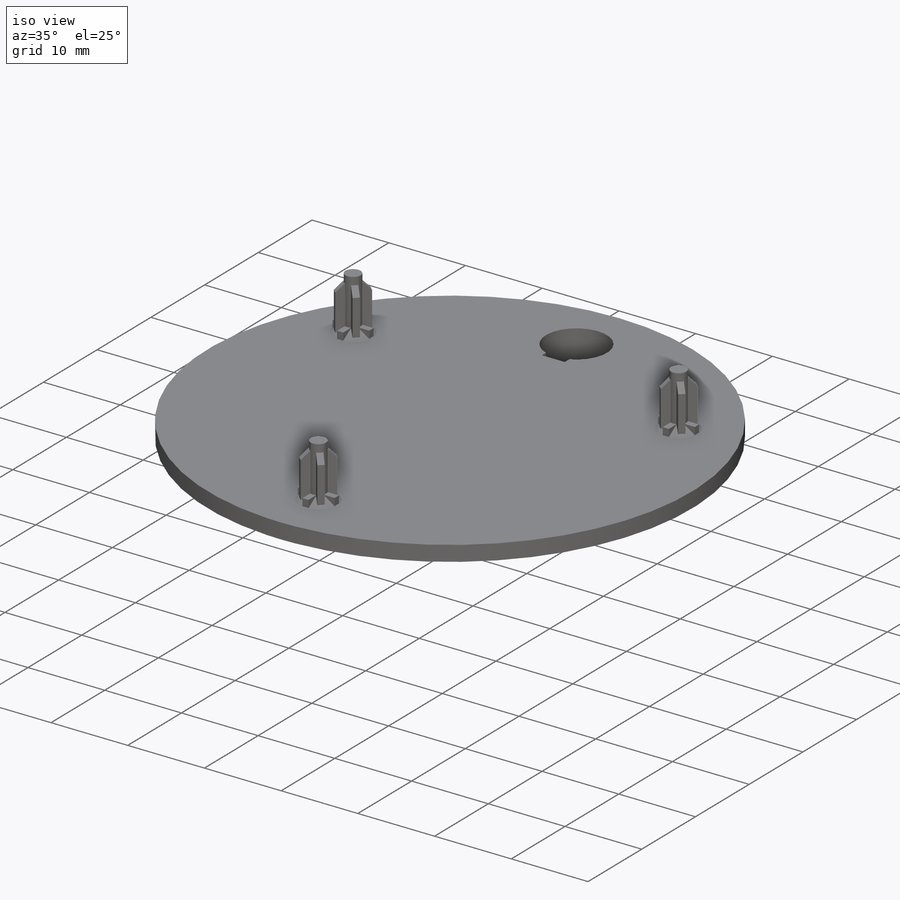
[diagram: iso view]
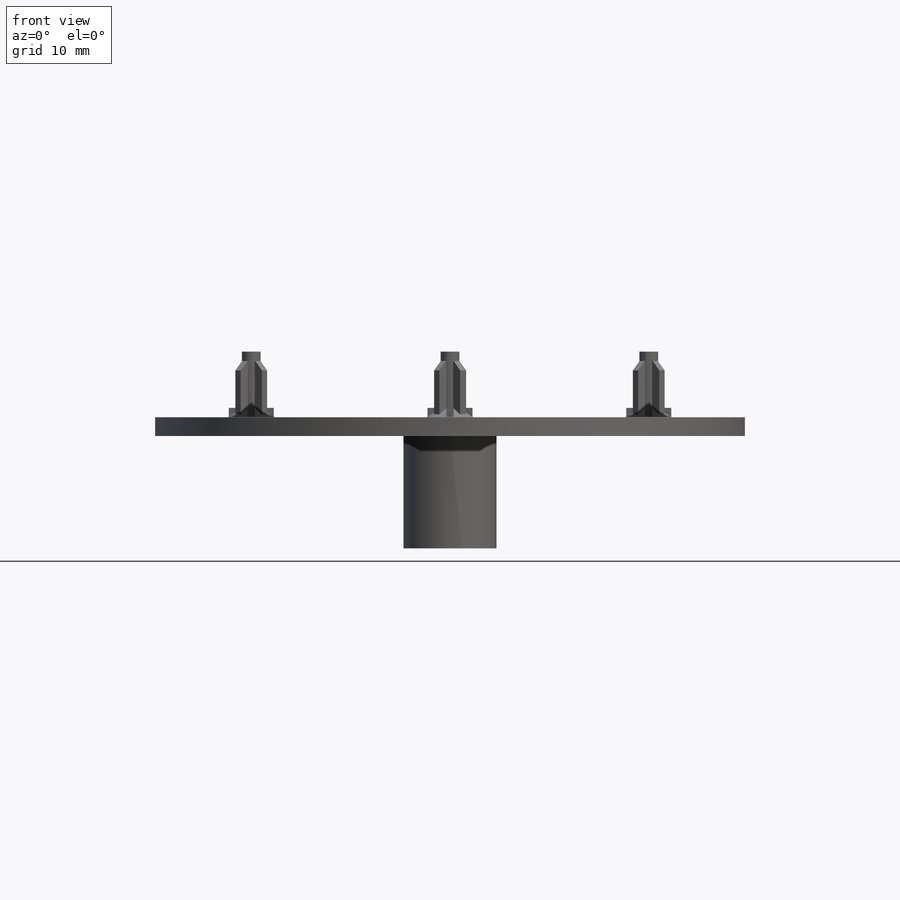
[diagram: front view]
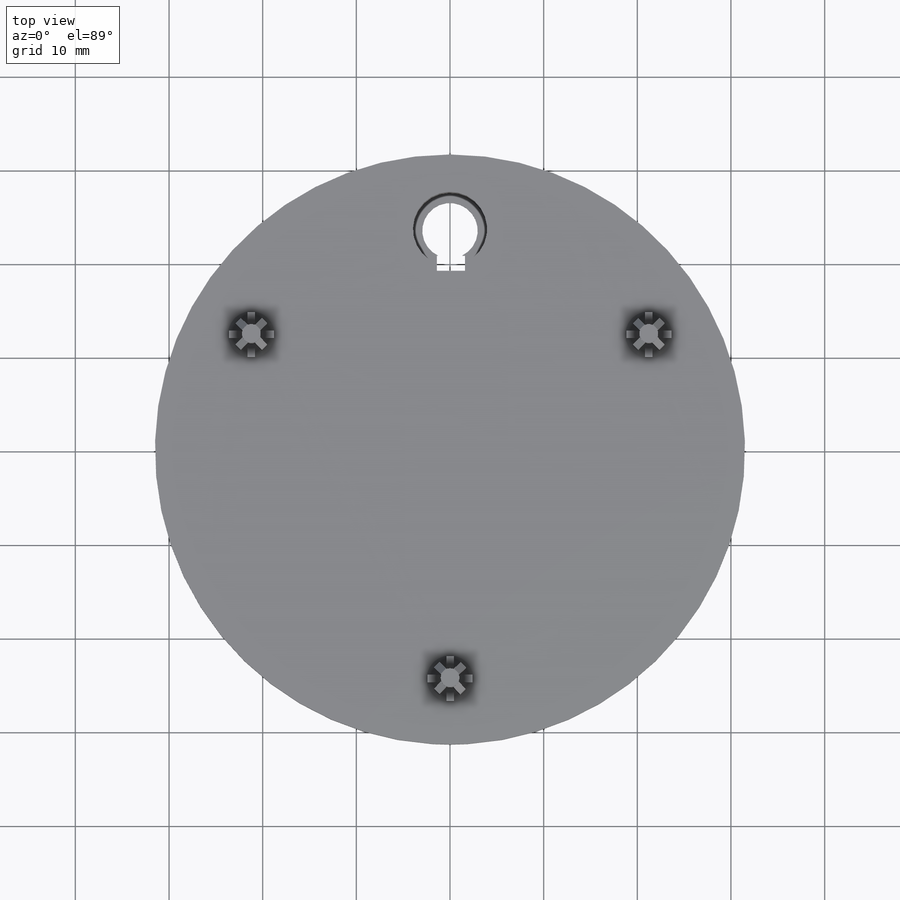
[diagram: top view]
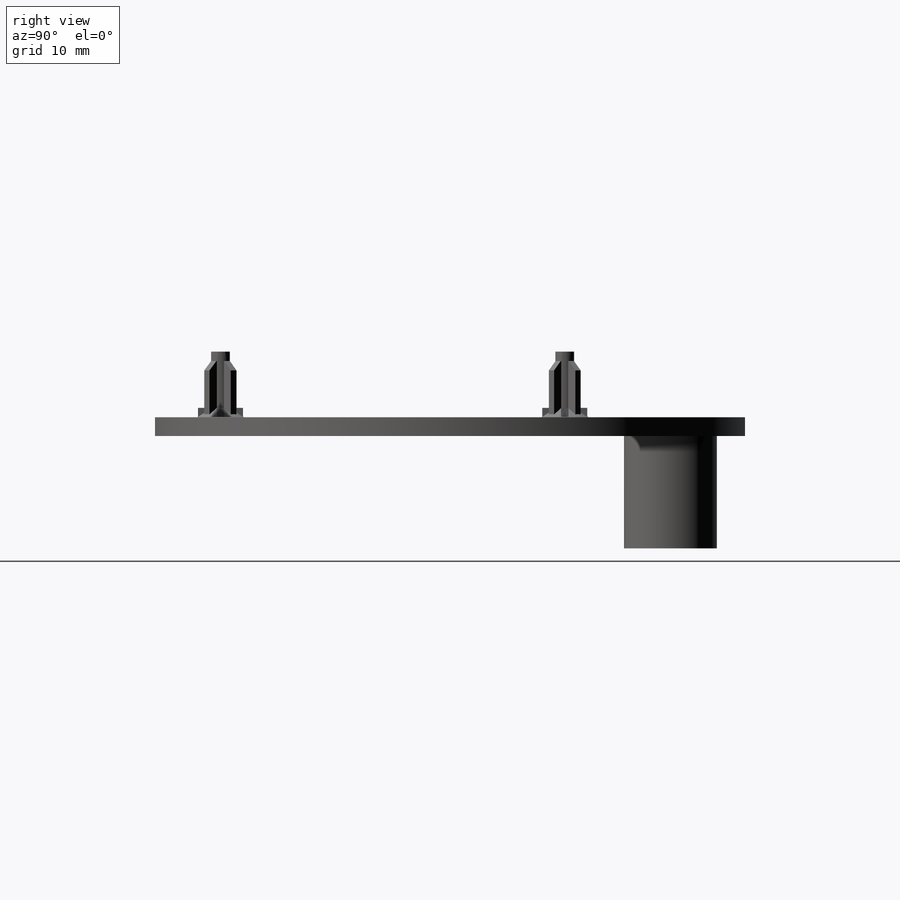
[diagram: right view]
SOLIDWORKS PART (.sldprt)
format: sldprt  version: not decoded by parser v0  size: 790,528 bytes
history: native  units: mm
features: sketch x11, extrude x8, plane x3, cut_extrude x3, material x1, chamfer x1 (+9 scaffold rows collapsed)
feature tree (36):
  scaffold x9  (default folders/planes/origin — collapsed)
  material  "Material <sin especificar>"
  plane  "Alzado"
  plane  "Planta"
  plane  "Vista lateral"
  sketch  "Croquis1"  dims[c1.D1=63.0mm c1.D5=5.0mm c1.D2=31.5mm c2.D2=120.0deg c2.D3=15.75mm c3.D3=120.0deg c3.D4=5.5mm c3.D6=3.0mm]
  extrude  "Saliente-Extruir2"  Depth=2mm
  sketch  "Croquis3"  dims[c1.D4=5.0mm c1.D5=2.0mm c1.D7=5.0mm c1.D8=2.0mm c1.D10=5.0mm c1.D11=2.0mm c1.D12=5.0mm c1.D1=31.5mm c2.D1=120.0deg c2.D2=~17.279872mm c3.D2=120.0deg c3.D3=5.5mm c3.D6=5.5mm c3.D9=5.5mm c4.D6=24.5mm c4.D9=24.5mm c4.D3=24.5mm]
  extrude  "Saliente-Extruir11"  Depth=7mm
  sketch  "Croquis6"  dims[D1=5.0mm D2=5.0mm D3=5.0mm]
  extrude  "Saliente-Extruir12"  Depth=1mm
  sketch  "Croquis7"  dims[c1.D1=~0.293618mm c1.D2=0.4mm c1.D3=0.4mm c1.D4=2.4mm c1.D5=2.4mm c1.D6=0.4mm c1.D7=0.4mm c1.D8=~0.314286mm c2.D7=2.4mm c2.D8=0.4mm c2.D9=2.4mm c2.D10=2.4mm c2.D11=0.4mm c2.D12=0.4mm c2.D13=2.4mm c2.D14=2.4mm c2.D15=2.4mm c2.D16=0.4mm c2.D17=0.4mm c2.D18=2.4mm c2.D19=0.4mm c3.D8=2.4mm c3.D9=2.4mm c3.D10=2.4mm c3.D11=2.4mm c3.D12=0.4mm c3.D13=0.4mm c3.D14=0.4mm c3.D19=0.4mm c3.D15=2.4mm c3.D16=2.4mm c3.D17=2.5mm c3.D18=2.4mm c3.D20=2.5mm c4.D17=2.4mm c4.D20=0.4mm c4.D21=0.4mm c4.D22=0.4mm c4.D23=2.4mm c4.D15=0.4mm c4.D16=0.4mm c5.D17=0.4mm c5.D20=0.4mm c5.D21=~2.399038mm c6.D20=0.4mm c6.D7=0.4mm c6.D4=0.4mm c6.D2=2.4mm c6.D3=2.4mm c7.D4=2.4mm c7.D5=2.4mm c7.D6=2.4mm c7.D2=~0.404972mm]
  extrude  "Saliente-Extruir13"  Depth=1mm
  sketch  "Croquis12"  dims[c1.D3=2.0mm c1.D6=5.0mm c1.D1=0.4mm c1.D2=2.0mm c2.D3=0.4mm c2.D4=2.0mm c2.D5=2.0mm c2.D6=0.4mm c2.D7=0.4mm c2.D8=2.0mm c2.D9=0.4mm c2.D10=0.4mm c2.D11=2.0mm c2.D12=0.4mm c2.D13=2.0mm c2.D14=2.0mm c2.D15=0.4mm c2.D16=0.4mm c2.D17=2.0mm c2.D18=~0.399639mm c2.D19=0.4mm c2.D20=0.4mm c2.D21=0.4mm c2.D22=0.4mm c2.D23=2.0mm c2.D24=0.4mm c2.D25=2.0mm c2.D26=0.4mm c2.D27=~1.881186mm c2.D28=2.0mm c2.D29=0.4mm c2.D30=0.4mm c3.D26=2.5mm c3.D12=2.0mm c3.D13=2.0mm c3.D14=2.0mm c3.D16=2.0mm c4.D12=0.0mm c4.D1=2.0mm c4.D2=2.0mm c4.D3=2.0mm c4.D4=2.0mm c4.D5=2.0mm c4.D6=2.0mm c4.D7=2.0mm c4.D8=2.0mm c4.D9=2.0mm c5.D6=2.0mm c5.D7=2.0mm c5.D8=2.0mm c5.D9=2.0mm c5.D10=2.0mm c6.D7=0.4mm c6.D8=~0.402151mm c7.D7=2.0mm c7.D8=2.0mm c7.D9=2.0mm c7.D10=2.0mm c8.D7=2.0mm c8.D8=0.4mm c8.D9=~0.402829mm c8.D10=0.4mm c8.D11=0.4mm c8.D12=~2.004468mm c8.D13=2.0mm c8.D14=~2.001333mm c9.D14=135.0deg c10.D14=~2.001333mm c10.D15=2.0mm c10.D16=0.4mm c10.D17=2.0mm c10.D18=0.4mm c10.D19=0.4mm c10.D20=0.4mm c10.D21=~1.999934mm]
  extrude  "Saliente-Extruir16"  Depth=6mm
  chamfer  "Chaflán1"  Distance=1mm Angle=45deg
  sketch  "Croquis13"  dims[c1.D3=7.92mm c1.D5=7.92mm c1.D1=9.92mm c1.D2=7.92mm c2.D3=8.92mm c2.D2=9.92mm c3.D3=7.92mm c3.D1=3.0mm c3.D2=3.96mm c3.D4=4.46mm c4.D3=3.0mm c4.D4=31.5mm c5.D3=3.0mm c5.D1=7.96mm c5.D4=1.0mm]
  extrude  "Saliente-Extruir17"  Depth=12mm
  sketch  "Croquis14"  dims[D1=5.92mm]
  extrude  "Saliente-Extruir18"  Depth=9mm
  sketch  "Croquis15"
  cut_extrude  "Cortar-Extruir1"  Depth=8mm
  sketch  "Croquis16"
  cut_extrude  "Cortar-Extruir3"  Depth=5mm
  sketch  "Croquis19"  dims[D1=3.94mm]
  extrude  "Saliente-Extruir19"  Depth=0.1mm
  sketch  "Croquis17"  dims[c1.D1=1.5mm c1.D2=1.5mm c1.D3=0.5mm c1.D4=23.54mm c2.D3=0.5mm c2.D1=~1.792945mm c2.D2=1.8mm c3.D3=3.0mm c3.D4=3.0mm]
  cut_extrude  "Cortar-Extruir8"  Depth=22mm
decode coverage: 21 of 23 modeling features carry decoded parameters
note: ~ marks probable driven/reference dimensions
note: suppression state not decoded; provenance and decode notes live in map.json
